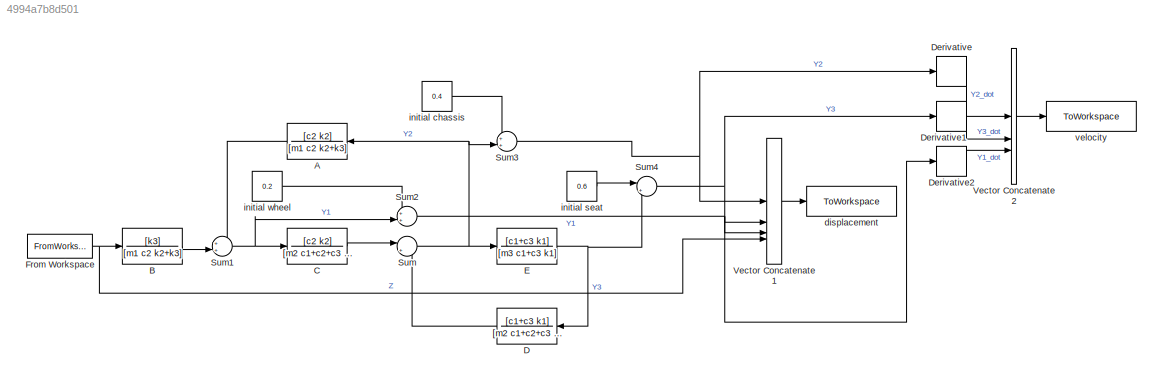
MODEL slx_4994a7b8d501
KIND model
CONFIG AbsTol = auto
CONFIG EnableMultiTasking = off
CONFIG FixedStep = auto
CONFIG MaxStep = auto
CONFIG MinStep = auto
CONFIG RelTol = 1e-3
CONFIG SampleTimeConstraint = Unconstrained
CONFIG SolverName = VariableStepAuto
CONFIG StartTime = 0.0
CONFIG StopTime = t_stop
BLOCK [TransferFcn] A
  Denominator = [m1 c2 k2+k3]
  Numerator = [c2 k2]
BLOCK [TransferFcn] B
  Denominator = [m1 c2 k2+k3]
  Numerator = [k3]
BLOCK [TransferFcn] C
  Denominator = [m2 c1+c2+c3 k1+k2]
  Numerator = [c2 k2]
BLOCK [TransferFcn] D
  Denominator = [m2 c1+c2+c3 k1+k2]
  Numerator = [c1+c3 k1]
BLOCK [Derivative] Derivative
BLOCK [Derivative] Derivative1
BLOCK [Derivative] Derivative2
BLOCK [TransferFcn] E
  Denominator = [m3 c1+c3 k1]
  Numerator = [c1+c3 k1]
BLOCK [FromWorkspace] From Workspace
  VariableName = profile
BLOCK [Sum] Sum
  Inputs = |++
BLOCK [Sum] Sum1
  Inputs = ++|
BLOCK [Sum] Sum2
  Inputs = ++|
BLOCK [Sum] Sum3
  Inputs = ++|
BLOCK [Sum] Sum4
  Inputs = |++
BLOCK [Concatenate] Vector Concatenate1
  NumInputs = 4
BLOCK [Concatenate] Vector Concatenate2
  NumInputs = 3
BLOCK [ToWorkspace] displacement
  FixptAsFi = on
  MaxDataPoints = inf
  SampleTime = -1
  SaveFormat = Structure With Time
  VariableName = lap_disp
BLOCK [Constant] initial chassis
  Value = 0.4
BLOCK [Constant] initial seat
  Value = 0.6
BLOCK [Constant] initial wheel
  Value = 0.2
BLOCK [ToWorkspace] velocity
  FixptAsFi = on
  MaxDataPoints = inf
  SampleTime = -1
  SaveFormat = Structure With Time
  VariableName = lap_velo
LINE A:1 -> Sum1:1
LINE B:1 -> Sum1:2
LINE C:1 -> Sum:1
LINE D:1 -> Sum:2
LINE Derivative1:1 -> Vector Concatenate2:2
LINE Derivative2:1 -> Vector Concatenate2:3
LINE Derivative:1 -> Vector Concatenate2:1
NET E:1 -> D:1, Sum4:2
NET From Workspace:1 -> B:1, Vector Concatenate1:4
NET Sum1:1 -> C:1, Sum2:2
NET Sum2:1 -> Derivative2:1, Vector Concatenate1:3
NET Sum3:1 -> Derivative:1, Vector Concatenate1:1
NET Sum4:1 -> Derivative1:1, Vector Concatenate1:2
NET Sum:1 -> A:1, E:1, Sum3:2
LINE Vector Concatenate1:1 -> displacement:1
LINE Vector Concatenate2:1 -> velocity:1
LINE initial chassis:1 -> Sum3:1
LINE initial seat:1 -> Sum4:1
LINE initial wheel:1 -> Sum2:1
note: NET lines group one-source signal fan-out (src -> all destinations, sorted); 1:1 wires keep LINE
